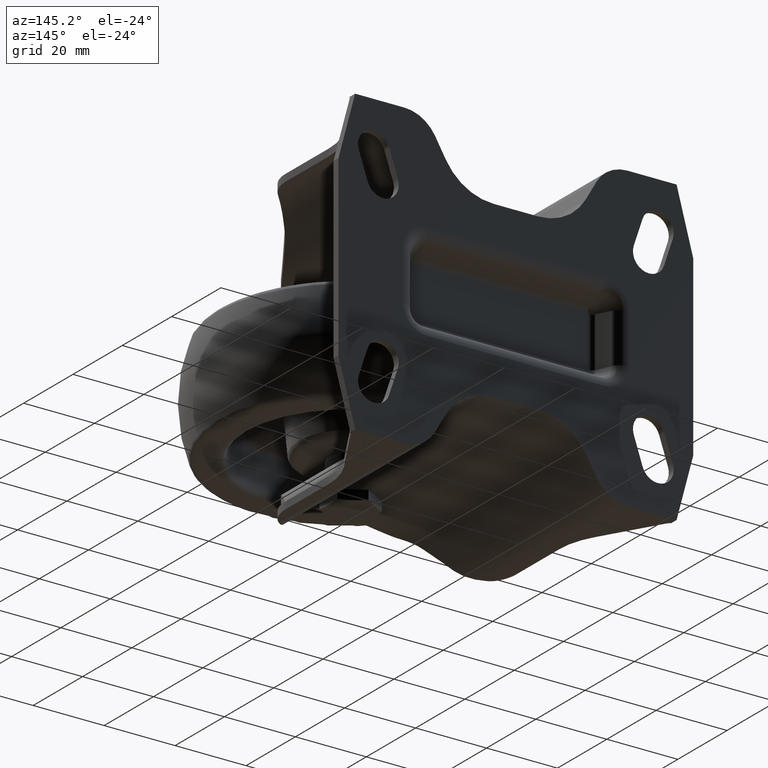
[diagram: clean part render]
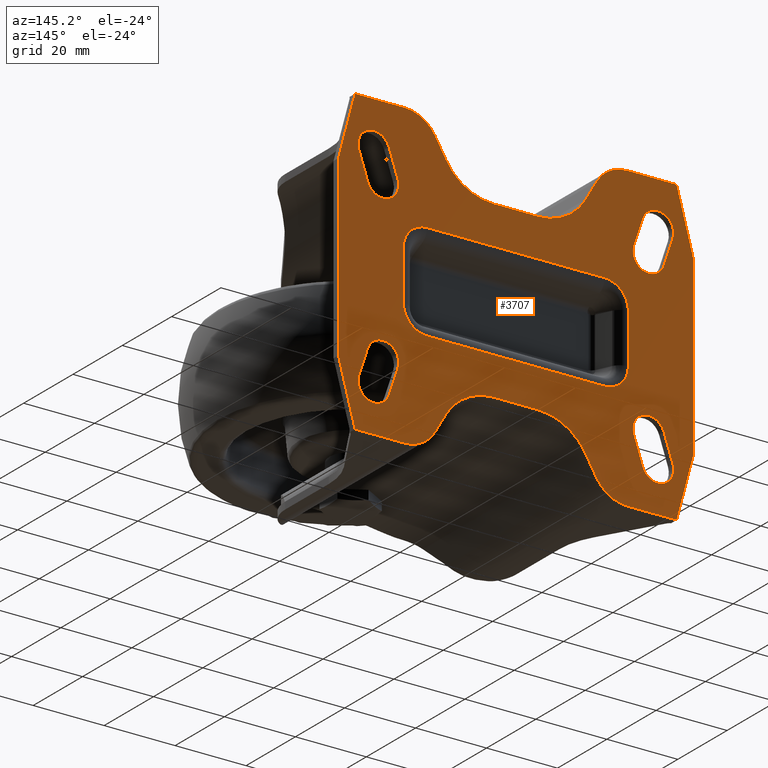
[diagram: same view with one face highlighted and labeled with its STEP entity id]
A machine part, auxiliary view. The second image highlights one B-rep face of the part: STEP entity #3707.
In plain terms, the highlighted planar face has unit normal (0, 1, 0).
Its self-contained STEP definition (entity closure, byte-faithful):
#156=FACE_BOUND('',#1206,.T.);
#157=FACE_BOUND('',#1207,.T.);
#158=FACE_BOUND('',#1208,.T.);
#159=FACE_BOUND('',#1209,.T.);
#160=FACE_BOUND('',#1210,.T.);
#226=PLANE('',#4173);
#290=LINE('',#5978,#550);
#300=LINE('',#6037,#560);
#304=LINE('',#6064,#564);
#308=LINE('',#6075,#568);
#312=LINE('',#6098,#572);
#320=LINE('',#6158,#580);
#371=LINE('',#6365,#631);
#374=LINE('',#6371,#634);
#377=LINE('',#6376,#637);
#380=LINE('',#6382,#640);
#384=LINE('',#6412,#644);
#386=LINE('',#6420,#646);
#389=LINE('',#6426,#649);
#392=LINE('',#6432,#652);
#398=LINE('',#6448,#658);
#400=LINE('',#6472,#660);
#401=LINE('',#6476,#661);
#406=LINE('',#6490,#666);
#409=LINE('',#6497,#669);
#414=LINE('',#6511,#674);
#417=LINE('',#6518,#677);
#422=LINE('',#6532,#682);
#425=LINE('',#6539,#685);
#430=LINE('',#6553,#690);
#439=LINE('',#6585,#699);
#440=LINE('',#6589,#700);
#441=LINE('',#6593,#701);
#442=LINE('',#6596,#702);
#550=VECTOR('',#4618,1000.);
#560=VECTOR('',#4648,1000.);
#564=VECTOR('',#4666,1000.);
#568=VECTOR('',#4674,1000.);
#572=VECTOR('',#4688,1000.);
#580=VECTOR('',#4720,1000.);
#631=VECTOR('',#4865,1000.);
#634=VECTOR('',#4870,1000.);
#637=VECTOR('',#4875,1000.);
#640=VECTOR('',#4882,1000.);
#644=VECTOR('',#4896,1000.);
#646=VECTOR('',#4904,1000.);
#649=VECTOR('',#4909,1000.);
#652=VECTOR('',#4914,1000.);
#658=VECTOR('',#4928,1000.);
#660=VECTOR('',#4940,1000.);
#661=VECTOR('',#4943,1000.);
#666=VECTOR('',#4956,1000.);
#669=VECTOR('',#4961,1000.);
#674=VECTOR('',#4974,1000.);
#677=VECTOR('',#4979,1000.);
#682=VECTOR('',#4992,1000.);
#685=VECTOR('',#4997,1000.);
#690=VECTOR('',#5010,1000.);
#699=VECTOR('',#5053,1000.);
#700=VECTOR('',#5056,1000.);
#701=VECTOR('',#5059,1000.);
#702=VECTOR('',#5062,1000.);
#969=FACE_OUTER_BOUND('',#1205,.T.);
#1205=EDGE_LOOP('',(#3048,#3049,#3050,#3051,#3052,#3053,#3054,#3055,#3056,
#3057,#3058,#3059,#3060,#3061,#3062,#3063,#3064,#3065,#3066,#3067,#3068,
#3069,#3070,#3071));
#1206=EDGE_LOOP('',(#3072,#3073,#3074,#3075));
#1207=EDGE_LOOP('',(#3076,#3077,#3078,#3079));
#1208=EDGE_LOOP('',(#3080,#3081,#3082,#3083));
#1209=EDGE_LOOP('',(#3084,#3085,#3086,#3087));
#1210=EDGE_LOOP('',(#3088,#3089,#3090,#3091,#3092,#3093,#3094,#3095));
#1361=CIRCLE('',#4036,10.);
#1363=CIRCLE('',#4039,15.5);
#1365=CIRCLE('',#4045,15.5);
#1368=CIRCLE('',#4054,15.5);
#1371=CIRCLE('',#4060,15.5);
#1372=CIRCLE('',#4063,10.);
#1394=CIRCLE('',#4120,10.);
#1401=CIRCLE('',#4135,10.);
#1402=CIRCLE('',#4140,4.5);
#1404=CIRCLE('',#4145,4.5);
#1406=CIRCLE('',#4150,4.49999999999999);
#1408=CIRCLE('',#4155,4.5);
#1410=CIRCLE('',#4159,4.5);
#1412=CIRCLE('',#4162,4.5);
#1414=CIRCLE('',#4165,4.49999999999999);
#1416=CIRCLE('',#4168,4.5);
#1420=CIRCLE('',#4174,6.72974591282623);
#1421=CIRCLE('',#4175,6.72974591282622);
#1422=CIRCLE('',#4176,6.72974591282622);
#1423=CIRCLE('',#4177,6.72974591282623);
#1637=VERTEX_POINT('',#5975);
#1638=VERTEX_POINT('',#5977);
#1647=VERTEX_POINT('',#6001);
#1650=VERTEX_POINT('',#6016);
#1651=VERTEX_POINT('',#6018);
#1655=VERTEX_POINT('',#6035);
#1659=VERTEX_POINT('',#6044);
#1663=VERTEX_POINT('',#6062);
#1665=VERTEX_POINT('',#6067);
#1668=VERTEX_POINT('',#6073);
#1672=VERTEX_POINT('',#6090);
#1674=VERTEX_POINT('',#6096);
#1679=VERTEX_POINT('',#6115);
#1681=VERTEX_POINT('',#6120);
#1685=VERTEX_POINT('',#6140);
#1692=VERTEX_POINT('',#6156);
#1761=VERTEX_POINT('',#6364);
#1763=VERTEX_POINT('',#6370);
#1768=VERTEX_POINT('',#6394);
#1772=VERTEX_POINT('',#6410);
#1775=VERTEX_POINT('',#6419);
#1777=VERTEX_POINT('',#6425);
#1779=VERTEX_POINT('',#6431);
#1785=VERTEX_POINT('',#6446);
#1789=VERTEX_POINT('',#6474);
#1790=VERTEX_POINT('',#6475);
#1793=VERTEX_POINT('',#6483);
#1795=VERTEX_POINT('',#6489);
#1797=VERTEX_POINT('',#6495);
#1798=VERTEX_POINT('',#6496);
#1801=VERTEX_POINT('',#6504);
#1803=VERTEX_POINT('',#6510);
#1805=VERTEX_POINT('',#6516);
#1806=VERTEX_POINT('',#6517);
#1809=VERTEX_POINT('',#6525);
#1811=VERTEX_POINT('',#6531);
#1813=VERTEX_POINT('',#6537);
#1814=VERTEX_POINT('',#6538);
#1817=VERTEX_POINT('',#6546);
#1819=VERTEX_POINT('',#6552);
#1823=VERTEX_POINT('',#6581);
#1824=VERTEX_POINT('',#6582);
#1825=VERTEX_POINT('',#6584);
#1826=VERTEX_POINT('',#6586);
#1827=VERTEX_POINT('',#6588);
#1828=VERTEX_POINT('',#6590);
#1829=VERTEX_POINT('',#6592);
#1830=VERTEX_POINT('',#6594);
#2034=EDGE_CURVE('',#1638,#1637,#290,.T.);
#2044=EDGE_CURVE('',#1637,#1647,#1361,.T.);
#2048=EDGE_CURVE('',#1650,#1651,#1363,.T.);
#2054=EDGE_CURVE('',#1650,#1655,#300,.T.);
#2058=EDGE_CURVE('',#1659,#1655,#1365,.T.);
#2064=EDGE_CURVE('',#1659,#1663,#304,.T.);
#2069=EDGE_CURVE('',#1665,#1668,#308,.T.);
#2074=EDGE_CURVE('',#1672,#1668,#1368,.T.);
#2077=EDGE_CURVE('',#1672,#1674,#312,.T.);
#2083=EDGE_CURVE('',#1679,#1674,#1371,.T.);
#2089=EDGE_CURVE('',#1681,#1685,#1372,.T.);
#2097=EDGE_CURVE('',#1685,#1692,#320,.T.);
#2182=EDGE_CURVE('',#1692,#1761,#371,.T.);
#2185=EDGE_CURVE('',#1761,#1763,#374,.T.);
#2188=EDGE_CURVE('',#1763,#1638,#377,.T.);
#2192=EDGE_CURVE('',#1647,#1651,#380,.T.);
#2195=EDGE_CURVE('',#1663,#1768,#1394,.T.);
#2201=EDGE_CURVE('',#1768,#1772,#384,.T.);
#2205=EDGE_CURVE('',#1772,#1775,#386,.T.);
#2208=EDGE_CURVE('',#1775,#1777,#389,.T.);
#2211=EDGE_CURVE('',#1777,#1779,#392,.T.);
#2220=EDGE_CURVE('',#1779,#1785,#398,.T.);
#2224=EDGE_CURVE('',#1785,#1665,#1401,.T.);
#2227=EDGE_CURVE('',#1679,#1681,#400,.T.);
#2228=EDGE_CURVE('',#1789,#1790,#401,.T.);
#2232=EDGE_CURVE('',#1793,#1789,#1402,.T.);
#2235=EDGE_CURVE('',#1795,#1793,#406,.T.);
#2238=EDGE_CURVE('',#1797,#1798,#409,.T.);
#2242=EDGE_CURVE('',#1801,#1797,#1404,.T.);
#2245=EDGE_CURVE('',#1803,#1801,#414,.T.);
#2248=EDGE_CURVE('',#1805,#1806,#417,.T.);
#2252=EDGE_CURVE('',#1809,#1805,#1406,.T.);
#2255=EDGE_CURVE('',#1811,#1809,#422,.T.);
#2258=EDGE_CURVE('',#1813,#1814,#425,.T.);
#2262=EDGE_CURVE('',#1817,#1813,#1408,.T.);
#2265=EDGE_CURVE('',#1819,#1817,#430,.T.);
#2268=EDGE_CURVE('',#1790,#1795,#1410,.T.);
#2270=EDGE_CURVE('',#1798,#1803,#1412,.T.);
#2272=EDGE_CURVE('',#1806,#1811,#1414,.T.);
#2274=EDGE_CURVE('',#1814,#1819,#1416,.T.);
#2284=EDGE_CURVE('',#1823,#1824,#1420,.T.);
#2285=EDGE_CURVE('',#1825,#1824,#439,.T.);
#2286=EDGE_CURVE('',#1826,#1825,#1421,.T.);
#2287=EDGE_CURVE('',#1826,#1827,#440,.T.);
#2288=EDGE_CURVE('',#1828,#1827,#1422,.T.);
#2289=EDGE_CURVE('',#1828,#1829,#441,.T.);
#2290=EDGE_CURVE('',#1829,#1830,#1423,.T.);
#2291=EDGE_CURVE('',#1823,#1830,#442,.T.);
#3048=ORIENTED_EDGE('',*,*,#2188,.T.);
#3049=ORIENTED_EDGE('',*,*,#2034,.T.);
#3050=ORIENTED_EDGE('',*,*,#2044,.T.);
#3051=ORIENTED_EDGE('',*,*,#2192,.T.);
#3052=ORIENTED_EDGE('',*,*,#2048,.F.);
#3053=ORIENTED_EDGE('',*,*,#2054,.T.);
#3054=ORIENTED_EDGE('',*,*,#2058,.F.);
#3055=ORIENTED_EDGE('',*,*,#2064,.T.);
#3056=ORIENTED_EDGE('',*,*,#2195,.T.);
#3057=ORIENTED_EDGE('',*,*,#2201,.T.);
#3058=ORIENTED_EDGE('',*,*,#2205,.T.);
#3059=ORIENTED_EDGE('',*,*,#2208,.T.);
#3060=ORIENTED_EDGE('',*,*,#2211,.T.);
#3061=ORIENTED_EDGE('',*,*,#2220,.T.);
#3062=ORIENTED_EDGE('',*,*,#2224,.T.);
#3063=ORIENTED_EDGE('',*,*,#2069,.T.);
#3064=ORIENTED_EDGE('',*,*,#2074,.F.);
#3065=ORIENTED_EDGE('',*,*,#2077,.T.);
#3066=ORIENTED_EDGE('',*,*,#2083,.F.);
#3067=ORIENTED_EDGE('',*,*,#2227,.T.);
#3068=ORIENTED_EDGE('',*,*,#2089,.T.);
#3069=ORIENTED_EDGE('',*,*,#2097,.T.);
#3070=ORIENTED_EDGE('',*,*,#2182,.T.);
#3071=ORIENTED_EDGE('',*,*,#2185,.T.);
#3072=ORIENTED_EDGE('',*,*,#2258,.F.);
#3073=ORIENTED_EDGE('',*,*,#2262,.F.);
#3074=ORIENTED_EDGE('',*,*,#2265,.F.);
#3075=ORIENTED_EDGE('',*,*,#2274,.F.);
#3076=ORIENTED_EDGE('',*,*,#2248,.F.);
#3077=ORIENTED_EDGE('',*,*,#2252,.F.);
#3078=ORIENTED_EDGE('',*,*,#2255,.F.);
#3079=ORIENTED_EDGE('',*,*,#2272,.F.);
#3080=ORIENTED_EDGE('',*,*,#2238,.F.);
#3081=ORIENTED_EDGE('',*,*,#2242,.F.);
#3082=ORIENTED_EDGE('',*,*,#2245,.F.);
#3083=ORIENTED_EDGE('',*,*,#2270,.F.);
#3084=ORIENTED_EDGE('',*,*,#2228,.F.);
#3085=ORIENTED_EDGE('',*,*,#2232,.F.);
#3086=ORIENTED_EDGE('',*,*,#2235,.F.);
#3087=ORIENTED_EDGE('',*,*,#2268,.F.);
#3088=ORIENTED_EDGE('',*,*,#2284,.T.);
#3089=ORIENTED_EDGE('',*,*,#2285,.F.);
#3090=ORIENTED_EDGE('',*,*,#2286,.F.);
#3091=ORIENTED_EDGE('',*,*,#2287,.T.);
#3092=ORIENTED_EDGE('',*,*,#2288,.F.);
#3093=ORIENTED_EDGE('',*,*,#2289,.T.);
#3094=ORIENTED_EDGE('',*,*,#2290,.T.);
#3095=ORIENTED_EDGE('',*,*,#2291,.F.);
#3707=ADVANCED_FACE('',(#969,#156,#157,#158,#159,#160),#226,.T.);
#4036=AXIS2_PLACEMENT_3D('',#6003,#4632,#4633);
#4039=AXIS2_PLACEMENT_3D('',#6019,#4639,#4640);
#4045=AXIS2_PLACEMENT_3D('',#6046,#4656,#4657);
#4054=AXIS2_PLACEMENT_3D('',#6092,#4682,#4683);
#4060=AXIS2_PLACEMENT_3D('',#6117,#4698,#4699);
#4063=AXIS2_PLACEMENT_3D('',#6142,#4706,#4707);
#4120=AXIS2_PLACEMENT_3D('',#6396,#4886,#4887);
#4135=AXIS2_PLACEMENT_3D('',#6467,#4933,#4934);
#4140=AXIS2_PLACEMENT_3D('',#6484,#4949,#4950);
#4145=AXIS2_PLACEMENT_3D('',#6505,#4967,#4968);
#4150=AXIS2_PLACEMENT_3D('',#6526,#4985,#4986);
#4155=AXIS2_PLACEMENT_3D('',#6547,#5003,#5004);
#4159=AXIS2_PLACEMENT_3D('',#6558,#5015,#5016);
#4162=AXIS2_PLACEMENT_3D('',#6561,#5021,#5022);
#4165=AXIS2_PLACEMENT_3D('',#6564,#5027,#5028);
#4168=AXIS2_PLACEMENT_3D('',#6567,#5033,#5034);
#4173=AXIS2_PLACEMENT_3D('',#6580,#5049,#5050);
#4174=AXIS2_PLACEMENT_3D('',#6583,#5051,#5052);
#4175=AXIS2_PLACEMENT_3D('',#6587,#5054,#5055);
#4176=AXIS2_PLACEMENT_3D('',#6591,#5057,#5058);
#4177=AXIS2_PLACEMENT_3D('',#6595,#5060,#5061);
#4618=DIRECTION('',(1.,0.,0.));
#4632=DIRECTION('center_axis',(0.,1.,0.));
#4633=DIRECTION('ref_axis',(1.,0.,0.));
#4639=DIRECTION('center_axis',(0.,1.,0.));
#4640=DIRECTION('ref_axis',(1.,0.,0.));
#4648=DIRECTION('',(1.,0.,0.));
#4656=DIRECTION('center_axis',(0.,1.,0.));
#4657=DIRECTION('ref_axis',(1.,0.,0.));
#4666=DIRECTION('',(0.5,0.,0.866025403784439));
#4674=DIRECTION('',(-0.5,0.,0.866025403784439));
#4682=DIRECTION('center_axis',(0.,1.,0.));
#4683=DIRECTION('ref_axis',(1.,0.,0.));
#4688=DIRECTION('',(-1.,0.,0.));
#4698=DIRECTION('center_axis',(0.,1.,0.));
#4699=DIRECTION('ref_axis',(1.,0.,0.));
#4706=DIRECTION('center_axis',(0.,1.,0.));
#4707=DIRECTION('ref_axis',(1.,0.,0.));
#4720=DIRECTION('',(-1.,0.,0.));
#4865=DIRECTION('',(-0.258819045102521,0.,0.965925826289068));
#4870=DIRECTION('',(0.,0.,1.));
#4875=DIRECTION('',(0.258819045102521,0.,0.965925826289068));
#4882=DIRECTION('',(0.5,0.,-0.866025403784439));
#4886=DIRECTION('center_axis',(0.,1.,0.));
#4887=DIRECTION('ref_axis',(1.,0.,0.));
#4896=DIRECTION('',(1.,0.,0.));
#4904=DIRECTION('',(0.258819045102521,0.,-0.965925826289068));
#4909=DIRECTION('',(0.,0.,-1.));
#4914=DIRECTION('',(-0.258819045102521,0.,-0.965925826289068));
#4928=DIRECTION('',(-1.,0.,0.));
#4933=DIRECTION('center_axis',(0.,1.,0.));
#4934=DIRECTION('ref_axis',(1.,0.,0.));
#4940=DIRECTION('',(-0.5,0.,-0.866025403784439));
#4943=DIRECTION('',(-0.316227766016838,0.,0.948683298050514));
#4949=DIRECTION('center_axis',(0.,1.,0.));
#4950=DIRECTION('ref_axis',(1.,0.,0.));
#4956=DIRECTION('',(0.316227766016838,0.,-0.948683298050514));
#4961=DIRECTION('',(-0.316227766016838,0.,-0.948683298050514));
#4967=DIRECTION('center_axis',(0.,1.,0.));
#4968=DIRECTION('ref_axis',(1.,0.,0.));
#4974=DIRECTION('',(0.316227766016838,0.,0.948683298050514));
#4979=DIRECTION('',(-0.316227766016838,0.,-0.948683298050514));
#4985=DIRECTION('center_axis',(0.,1.,0.));
#4986=DIRECTION('ref_axis',(1.,0.,0.));
#4992=DIRECTION('',(0.316227766016838,0.,0.948683298050514));
#4997=DIRECTION('',(-0.316227766016838,0.,0.948683298050514));
#5003=DIRECTION('center_axis',(0.,1.,0.));
#5004=DIRECTION('ref_axis',(1.,0.,0.));
#5010=DIRECTION('',(0.316227766016838,0.,-0.948683298050514));
#5015=DIRECTION('center_axis',(0.,1.,0.));
#5016=DIRECTION('ref_axis',(1.,0.,0.));
#5021=DIRECTION('center_axis',(0.,1.,0.));
#5022=DIRECTION('ref_axis',(1.,0.,0.));
#5027=DIRECTION('center_axis',(0.,1.,0.));
#5028=DIRECTION('ref_axis',(1.,0.,0.));
#5033=DIRECTION('center_axis',(0.,1.,0.));
#5034=DIRECTION('ref_axis',(1.,0.,0.));
#5049=DIRECTION('center_axis',(0.,1.,0.));
#5050=DIRECTION('ref_axis',(0.,0.,1.));
#5051=DIRECTION('center_axis',(0.,-1.,0.));
#5052=DIRECTION('ref_axis',(0.,0.,-1.));
#5053=DIRECTION('',(0.,0.,-1.));
#5054=DIRECTION('center_axis',(0.,1.,2.60208521396521E-16));
#5055=DIRECTION('ref_axis',(0.,-2.60208521396521E-16,1.));
#5056=DIRECTION('',(-1.,0.,0.));
#5057=DIRECTION('center_axis',(0.,1.,2.60208521396521E-16));
#5058=DIRECTION('ref_axis',(0.,-2.60208521396521E-16,1.));
#5059=DIRECTION('',(0.,0.,-1.));
#5060=DIRECTION('center_axis',(0.,-1.,0.));
#5061=DIRECTION('ref_axis',(0.,0.,-1.));
#5062=DIRECTION('',(-1.,0.,0.));
#5975=CARTESIAN_POINT('',(-31.4158075373095,67.,42.5));
#5977=CARTESIAN_POINT('',(-45.3108891324554,67.,42.5));
#5978=CARTESIAN_POINT('',(-45.3108891324554,67.,42.5));
#6001=CARTESIAN_POINT('',(-22.7555534994651,67.,37.5));
#6003=CARTESIAN_POINT('Origin',(-31.4158075373095,67.,32.5));
#6016=CARTESIAN_POINT('',(-6.30107082756081,67.,24.5));
#6018=CARTESIAN_POINT('',(-19.7244645862196,67.,32.25));
#6019=CARTESIAN_POINT('Origin',(-6.3010708275608,67.,40.));
#6035=CARTESIAN_POINT('',(6.3010708275608,67.,24.5));
#6037=CARTESIAN_POINT('',(-6.3010708275608,67.,24.5));
#6044=CARTESIAN_POINT('',(19.7244645862196,67.,32.25));
#6046=CARTESIAN_POINT('Origin',(6.3010708275608,67.,40.));
#6062=CARTESIAN_POINT('',(22.7555534994651,67.,37.5));
#6064=CARTESIAN_POINT('',(19.7244645862196,67.,32.25));
#6067=CARTESIAN_POINT('',(22.7555534994651,67.,-37.5));
#6073=CARTESIAN_POINT('',(19.7244645862196,67.,-32.25));
#6075=CARTESIAN_POINT('',(22.7555534994651,67.,-37.5));
#6090=CARTESIAN_POINT('',(6.3010708275608,67.,-24.5));
#6092=CARTESIAN_POINT('Origin',(6.3010708275608,67.,-40.));
#6096=CARTESIAN_POINT('',(-6.3010708275608,67.,-24.5));
#6098=CARTESIAN_POINT('',(6.3010708275608,67.,-24.5));
#6115=CARTESIAN_POINT('',(-19.7244645862196,67.,-32.25));
#6117=CARTESIAN_POINT('Origin',(-6.30107082756081,67.,-40.));
#6120=CARTESIAN_POINT('',(-22.7555534994651,67.,-37.5));
#6140=CARTESIAN_POINT('',(-31.4158075373095,67.,-42.5));
#6142=CARTESIAN_POINT('Origin',(-31.4158075373095,67.,-32.5));
#6156=CARTESIAN_POINT('',(-45.3108891324554,67.,-42.5));
#6158=CARTESIAN_POINT('',(-31.4158075373095,67.,-42.5));
#6364=CARTESIAN_POINT('',(-50.,67.,-25.));
#6365=CARTESIAN_POINT('',(-45.3108891324554,67.,-42.5));
#6370=CARTESIAN_POINT('',(-50.,67.,25.));
#6371=CARTESIAN_POINT('',(-50.,67.,-25.));
#6376=CARTESIAN_POINT('',(-50.,67.,25.));
#6382=CARTESIAN_POINT('',(-22.7555534994651,67.,37.5));
#6394=CARTESIAN_POINT('',(31.4158075373095,67.,42.5));
#6396=CARTESIAN_POINT('Origin',(31.4158075373095,67.,32.5));
#6410=CARTESIAN_POINT('',(45.3108891324554,67.,42.5));
#6412=CARTESIAN_POINT('',(31.4158075373095,67.,42.5));
#6419=CARTESIAN_POINT('',(50.,67.,25.));
#6420=CARTESIAN_POINT('',(45.3108891324554,67.,42.5));
#6425=CARTESIAN_POINT('',(50.,67.,-25.));
#6426=CARTESIAN_POINT('',(50.,67.,25.));
#6431=CARTESIAN_POINT('',(45.3108891324554,67.,-42.5));
#6432=CARTESIAN_POINT('',(50.,67.,-25.));
#6446=CARTESIAN_POINT('',(31.4158075373095,67.,-42.5));
#6448=CARTESIAN_POINT('',(45.3108891324554,67.,-42.5));
#6467=CARTESIAN_POINT('Origin',(31.4158075373095,67.,-32.5));
#6472=CARTESIAN_POINT('',(-19.7244645862196,67.,-32.25));
#6474=CARTESIAN_POINT('',(35.7309251587727,67.,-31.4230249470758));
#6475=CARTESIAN_POINT('',(33.2309251587727,67.,-23.9230249470758));
#6476=CARTESIAN_POINT('',(35.7309251587727,67.,-31.4230249470758));
#6483=CARTESIAN_POINT('',(44.2690748412273,67.,-28.5769750529242));
#6484=CARTESIAN_POINT('Origin',(40.,67.,-30.));
#6489=CARTESIAN_POINT('',(41.7690748412273,67.,-21.0769750529242));
#6490=CARTESIAN_POINT('',(41.7690748412273,67.,-21.0769750529242));
#6495=CARTESIAN_POINT('',(44.2690748412273,67.,28.5769750529242));
#6496=CARTESIAN_POINT('',(41.7690748412273,67.,21.0769750529242));
#6497=CARTESIAN_POINT('',(44.2690748412273,67.,28.5769750529242));
#6504=CARTESIAN_POINT('',(35.7309251587727,67.,31.4230249470758));
#6505=CARTESIAN_POINT('Origin',(40.,67.,30.));
#6510=CARTESIAN_POINT('',(33.2309251587727,67.,23.9230249470758));
#6511=CARTESIAN_POINT('',(33.2309251587727,67.,23.9230249470758));
#6516=CARTESIAN_POINT('',(-33.2309251587727,67.,-23.9230249470758));
#6517=CARTESIAN_POINT('',(-35.7309251587727,67.,-31.4230249470758));
#6518=CARTESIAN_POINT('',(-33.2309251587727,67.,-23.9230249470758));
#6525=CARTESIAN_POINT('',(-41.7690748412273,67.,-21.0769750529242));
#6526=CARTESIAN_POINT('Origin',(-37.5,67.,-22.5));
#6531=CARTESIAN_POINT('',(-44.2690748412273,67.,-28.5769750529242));
#6532=CARTESIAN_POINT('',(-44.2690748412273,67.,-28.5769750529242));
#6537=CARTESIAN_POINT('',(-41.7690748412273,67.,21.0769750529242));
#6538=CARTESIAN_POINT('',(-44.2690748412273,67.,28.5769750529242));
#6539=CARTESIAN_POINT('',(-41.7690748412273,67.,21.0769750529242));
#6546=CARTESIAN_POINT('',(-33.2309251587727,67.,23.9230249470758));
#6547=CARTESIAN_POINT('Origin',(-37.5,67.,22.5));
#6552=CARTESIAN_POINT('',(-35.7309251587727,67.,31.4230249470758));
#6553=CARTESIAN_POINT('',(-35.7309251587727,67.,31.4230249470758));
#6558=CARTESIAN_POINT('Origin',(37.5,67.,-22.5));
#6561=CARTESIAN_POINT('Origin',(37.5,67.,22.5));
#6564=CARTESIAN_POINT('Origin',(-40.,67.,-30.));
#6567=CARTESIAN_POINT('Origin',(-40.,67.,30.));
#6580=CARTESIAN_POINT('Origin',(-31.4158075373095,67.,32.5));
#6581=CARTESIAN_POINT('',(25.,67.,-13.7297459128262));
#6582=CARTESIAN_POINT('',(31.7297459128262,67.,-7.));
#6583=CARTESIAN_POINT('Origin',(25.,67.,-7.));
#6584=CARTESIAN_POINT('',(31.7297459128262,67.,7.));
#6585=CARTESIAN_POINT('',(31.7297459128262,67.,7.));
#6586=CARTESIAN_POINT('',(25.,67.,13.7297459128262));
#6587=CARTESIAN_POINT('Origin',(25.,67.,7.));
#6588=CARTESIAN_POINT('',(-25.,67.,13.7297459128262));
#6589=CARTESIAN_POINT('',(25.,67.,13.7297459128262));
#6590=CARTESIAN_POINT('',(-31.7297459128263,67.,7.));
#6591=CARTESIAN_POINT('Origin',(-25.,67.,7.));
#6592=CARTESIAN_POINT('',(-31.7297459128262,67.,-7.));
#6593=CARTESIAN_POINT('',(-31.7297459128262,67.,7.));
#6594=CARTESIAN_POINT('',(-25.,67.,-13.7297459128262));
#6595=CARTESIAN_POINT('Origin',(-25.,67.,-7.));
#6596=CARTESIAN_POINT('',(25.,67.,-13.7297459128262));